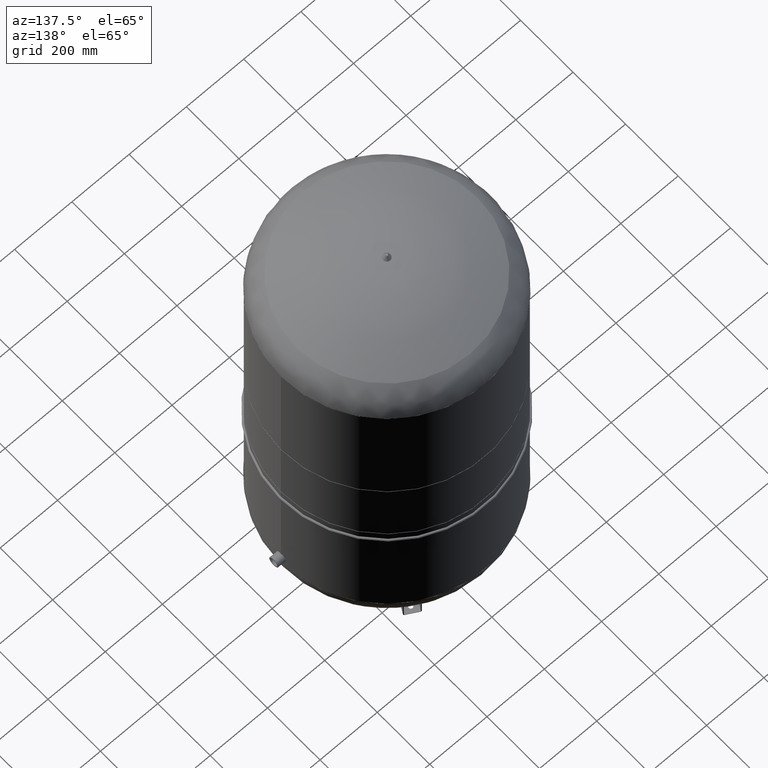
[diagram: clean part render]
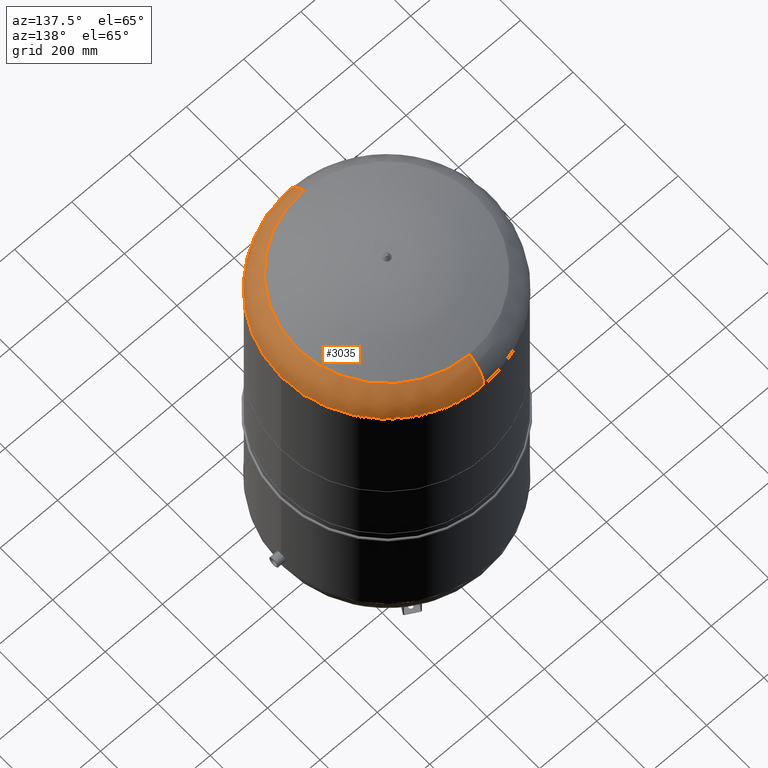
[diagram: same view with one face highlighted and labeled with its STEP entity id]
A machine part, auxiliary view. The second image highlights one B-rep face of the part: STEP entity #3035.
In plain terms, the highlighted face is a freeform B-spline surface patch.
Its self-contained STEP definition (entity closure, byte-faithful):
#2918=CARTESIAN_POINT('',(370.0,1.062956E-014,1341.206120388130600));
#2919=VERTEX_POINT('',#2918);
#2926=CARTESIAN_POINT('',(0.0,-370.000000000000060,1341.206120388130600));
#2927=VERTEX_POINT('',#2926);
#2928=CARTESIAN_POINT('',(0.0,-3.468087E-014,1341.206120388130600));
#2929=DIRECTION('',(0.0,0.0,1.0));
#2930=DIRECTION('',(-1.0,0.0,0.0));
#2931=AXIS2_PLACEMENT_3D('',#2928,#2929,#2930);
#2932=CIRCLE('',#2931,370.0);
#2933=EDGE_CURVE('',#2927,#2919,#2932,.T.);
#2945=CARTESIAN_POINT('',(-1.702203E-014,139.000000000000060,1341.206120388130300));
#2946=CARTESIAN_POINT('',(-1.702203E-014,139.000000000000060,1456.706120388130300));
#2947=CARTESIAN_POINT('',(-3.116623E-014,254.500000000000000,1456.706120388130300));
#2948=CARTESIAN_POINT('',(-4.531044E-014,370.0,1456.706120388130300));
#2949=CARTESIAN_POINT('',(-4.531044E-014,369.999999999999940,1341.206120388130300));
#2950=CARTESIAN_POINT('',(-139.000000000000090,139.0,1341.206120388130300));
#2951=CARTESIAN_POINT('',(-139.000000000000060,139.0,1456.706120388130300));
#2952=CARTESIAN_POINT('',(-254.500000000000000,254.499999999999860,1456.706120388130300));
#2953=CARTESIAN_POINT('',(-370.0,369.999999999999890,1456.706120388130300));
#2954=CARTESIAN_POINT('',(-370.0,369.999999999999890,1341.206120388130300));
#2955=CARTESIAN_POINT('',(-139.000000000000090,-5.170290E-014,1341.206120388130300));
#2956=CARTESIAN_POINT('',(-139.000000000000060,-3.048590E-014,1456.706120388130300));
#2957=CARTESIAN_POINT('',(-254.500000000000000,-4.463010E-014,1456.706120388130300));
#2958=CARTESIAN_POINT('',(-370.0,-5.877430E-014,1456.706120388130300));
#2959=CARTESIAN_POINT('',(-370.0,-7.999131E-014,1341.206120388130300));
#2960=CARTESIAN_POINT('',(-139.000000000000030,-139.000000000000110,1341.206120388130300));
#2961=CARTESIAN_POINT('',(-139.0,-139.000000000000060,1456.706120388130300));
#2962=CARTESIAN_POINT('',(-254.499999999999910,-254.500000000000000,1456.706120388130300));
#2963=CARTESIAN_POINT('',(-369.999999999999890,-370.0,1456.706120388130300));
#2964=CARTESIAN_POINT('',(-369.999999999999890,-370.0,1341.206120388130300));
#2965=CARTESIAN_POINT('',(1.702203E-014,-139.000000000000110,1341.206120388130300));
#2966=CARTESIAN_POINT('',(1.702203E-014,-139.000000000000060,1456.706120388130300));
#2967=CARTESIAN_POINT('',(3.116623E-014,-254.500000000000000,1456.706120388130300));
#2968=CARTESIAN_POINT('',(4.531044E-014,-370.0,1456.706120388130300));
#2969=CARTESIAN_POINT('',(4.531044E-014,-370.000000000000060,1341.206120388130300));
#2970=CARTESIAN_POINT('',(139.000000000000090,-139.000000000000090,1341.206120388130300));
#2971=CARTESIAN_POINT('',(139.000000000000060,-139.000000000000030,1456.706120388130300));
#2972=CARTESIAN_POINT('',(254.500000000000000,-254.499999999999910,1456.706120388130300));
#2973=CARTESIAN_POINT('',(370.0,-369.999999999999890,1456.706120388130300));
#2974=CARTESIAN_POINT('',(370.0,-369.999999999999890,1341.206120388130300));
#2975=CARTESIAN_POINT('',(139.000000000000090,-1.765884E-014,1341.206120388130300));
#2976=CARTESIAN_POINT('',(139.000000000000060,3.558161E-015,1456.706120388130300));
#2977=CARTESIAN_POINT('',(254.500000000000000,1.770236E-014,1456.706120388130300));
#2978=CARTESIAN_POINT('',(370.0,3.184657E-014,1456.706120388130300));
#2979=CARTESIAN_POINT('',(370.0,1.062956E-014,1341.206120388130300));
#2980=CARTESIAN_POINT('',(139.000000000000030,139.000000000000030,1341.206120388130300));
#2981=CARTESIAN_POINT('',(139.0,139.000000000000030,1456.706120388130300));
#2982=CARTESIAN_POINT('',(254.499999999999910,254.500000000000000,1456.706120388130300));
#2983=CARTESIAN_POINT('',(369.999999999999890,370.0,1456.706120388130300));
#2984=CARTESIAN_POINT('',(369.999999999999890,369.999999999999890,1341.206120388130300));
#2985=CARTESIAN_POINT('',(-1.702203E-014,139.000000000000060,1341.206120388130300));
#2986=CARTESIAN_POINT('',(-1.702203E-014,139.000000000000060,1456.706120388130300));
#2987=CARTESIAN_POINT('',(-3.116623E-014,254.500000000000000,1456.706120388130300));
#2988=CARTESIAN_POINT('',(-4.531044E-014,370.0,1456.706120388130300));
#2989=CARTESIAN_POINT('',(-4.531044E-014,369.999999999999940,1341.206120388130300));
#2997=(BOUNDED_SURFACE()B_SPLINE_SURFACE(2,2,((#2945,#2950,#2955,#2960,#2965,#2970,#2975,#2980,#2985),(#2946,#2951,#2956,#2961,#2966,#2971,#2976,#2981,#2986),(#2947,#2952,#2957,#2962,#2967,#2972,#2977,#2982,#2987),(#2948,#2953,#2958,#2963,#2968,#2973,#2978,#2983,#2988),(#2949,#2954,#2959,#2964,#2969,#2974,#2979,#2984,#2989)),.UNSPECIFIED.,.F.,.T.,.U.)B_SPLINE_SURFACE_WITH_KNOTS((3,2,3),(3,2,2,2,3),(-3.141592653589794,-1.570796326794897,5.884666E-016),(0.0,1.570796326794897,3.141592653589793,4.712388980384690,6.283185307179586),.UNSPECIFIED.)GEOMETRIC_REPRESENTATION_ITEM()RATIONAL_B_SPLINE_SURFACE(((1.0,0.707106781186548,1.0,0.707106781186548,1.0,0.707106781186548,1.0,0.707106781186548,1.0),(0.707106781186545,0.499999999999998,0.707106781186545,0.499999999999998,0.707106781186545,0.499999999999998,0.707106781186545,0.499999999999998,0.707106781186545),(1.0,0.707106781186548,1.0,0.707106781186548,1.0,0.707106781186548,1.0,0.707106781186548,1.0),(0.707106781186545,0.499999999999999,0.707106781186545,0.499999999999999,0.707106781186545,0.499999999999999,0.707106781186545,0.499999999999999,0.707106781186545),(1.0,0.707106781186548,1.0,0.707106781186548,1.0,0.707106781186548,1.0,0.707106781186548,1.0)))REPRESENTATION_ITEM('')SURFACE());
#2998=CARTESIAN_POINT('',(0.0,-315.931034482758610,1439.014494274920500));
#2999=VERTEX_POINT('',#2998);
#3000=CARTESIAN_POINT('',(0.0,-254.500000000000060,1341.206120388130300));
#3001=DIRECTION('',(-1.0,0.0,0.0));
#3002=DIRECTION('',(0.0,-1.0,0.0));
#3003=AXIS2_PLACEMENT_3D('',#3000,#3001,#3002);
#3004=CIRCLE('',#3003,115.500000000000000);
#3005=EDGE_CURVE('',#2927,#2999,#3004,.T.);
#3006=ORIENTED_EDGE('',*,*,#3005,.F.);
#3007=ORIENTED_EDGE('',*,*,#2933,.T.);
#3008=CARTESIAN_POINT('',(-4.531044E-014,369.999999999999940,1341.206120388130300));
#3009=VERTEX_POINT('',#3008);
#3010=CARTESIAN_POINT('',(0.0,-3.468087E-014,1341.206120388130600));
#3011=DIRECTION('',(0.0,0.0,1.0));
#3012=DIRECTION('',(-1.0,0.0,0.0));
#3013=AXIS2_PLACEMENT_3D('',#3010,#3011,#3012);
#3014=CIRCLE('',#3013,370.0);
#3015=EDGE_CURVE('',#2919,#3009,#3014,.T.);
#3016=ORIENTED_EDGE('',*,*,#3015,.T.);
#3017=CARTESIAN_POINT('',(-3.868912E-014,315.931034482758610,1439.014494274920300));
#3018=VERTEX_POINT('',#3017);
#3019=CARTESIAN_POINT('',(-3.116623E-014,254.500000000000000,1341.206120388130300));
#3020=DIRECTION('',(1.0,0.0,0.0));
#3021=DIRECTION('',(0.0,1.0,0.0));
#3022=AXIS2_PLACEMENT_3D('',#3019,#3020,#3021);
#3023=CIRCLE('',#3022,115.500000000000000);
#3024=EDGE_CURVE('',#3009,#3018,#3023,.T.);
#3025=ORIENTED_EDGE('',*,*,#3024,.T.);
#3026=CARTESIAN_POINT('',(0.0,-1.671377E-014,1439.014494274920500));
#3027=DIRECTION('',(0.0,0.0,1.0));
#3028=DIRECTION('',(-1.0,0.0,0.0));
#3029=AXIS2_PLACEMENT_3D('',#3026,#3027,#3028);
#3030=CIRCLE('',#3029,315.931034482758610);
#3031=EDGE_CURVE('',#2999,#3018,#3030,.T.);
#3032=ORIENTED_EDGE('',*,*,#3031,.F.);
#3033=EDGE_LOOP('',(#3006,#3007,#3016,#3025,#3032));
#3034=FACE_OUTER_BOUND('',#3033,.T.);
#3035=ADVANCED_FACE('',(#3034),#2997,.T.);